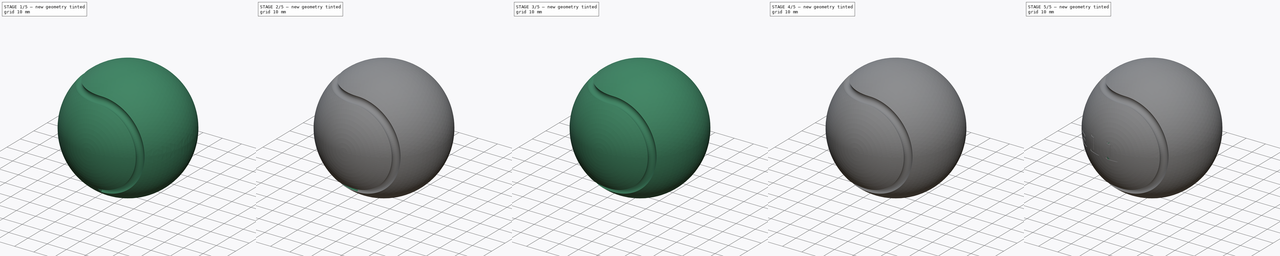
[diagram: build sequence overview — one tinted view per stage of 5, left to right]
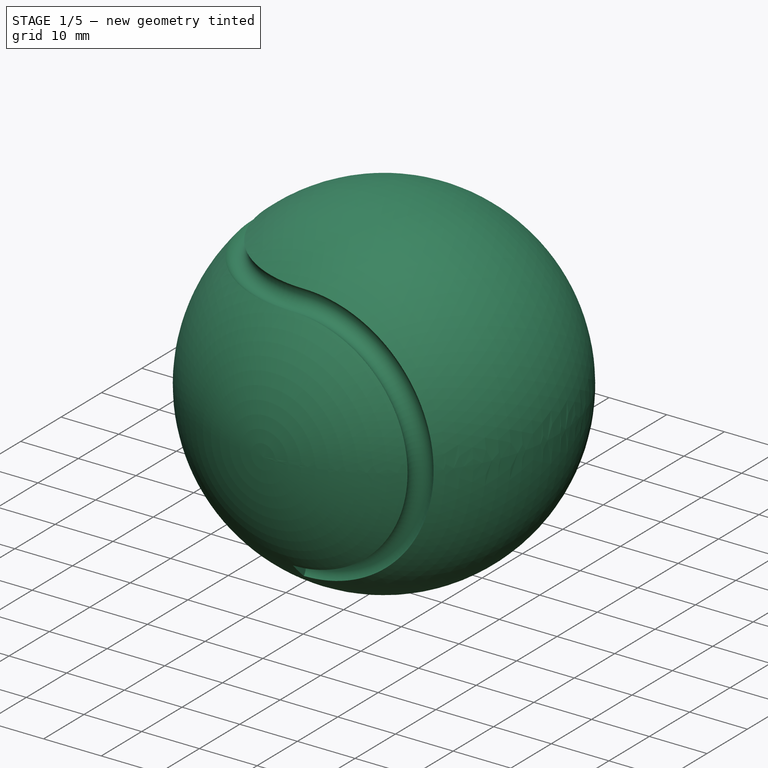
[diagram: stage 1 of 5 — iso view after this stage's code; geometry added in this stage tinted green]
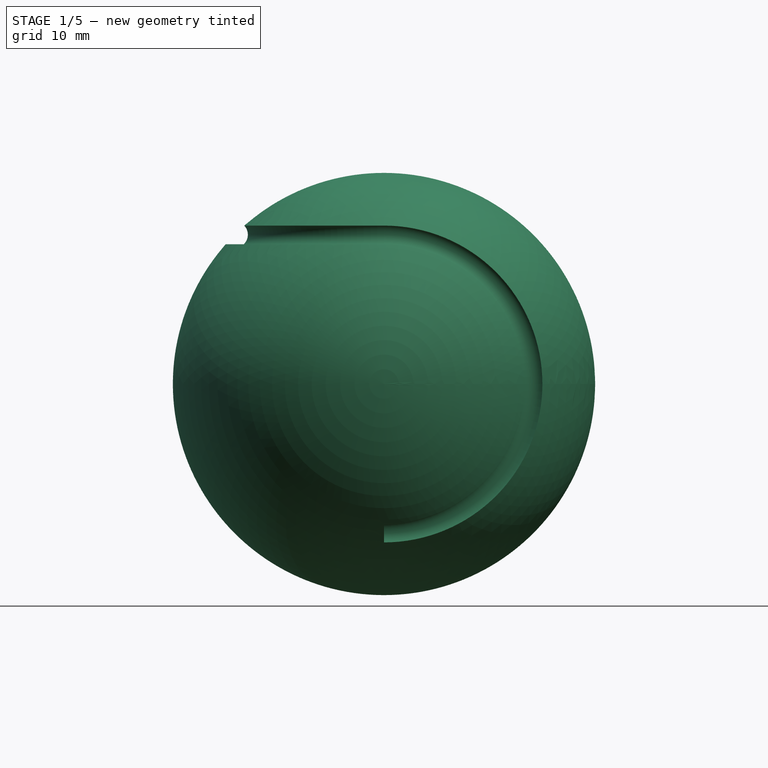
[diagram: stage 1 of 5 — front view after this stage's code; geometry added in this stage tinted green]
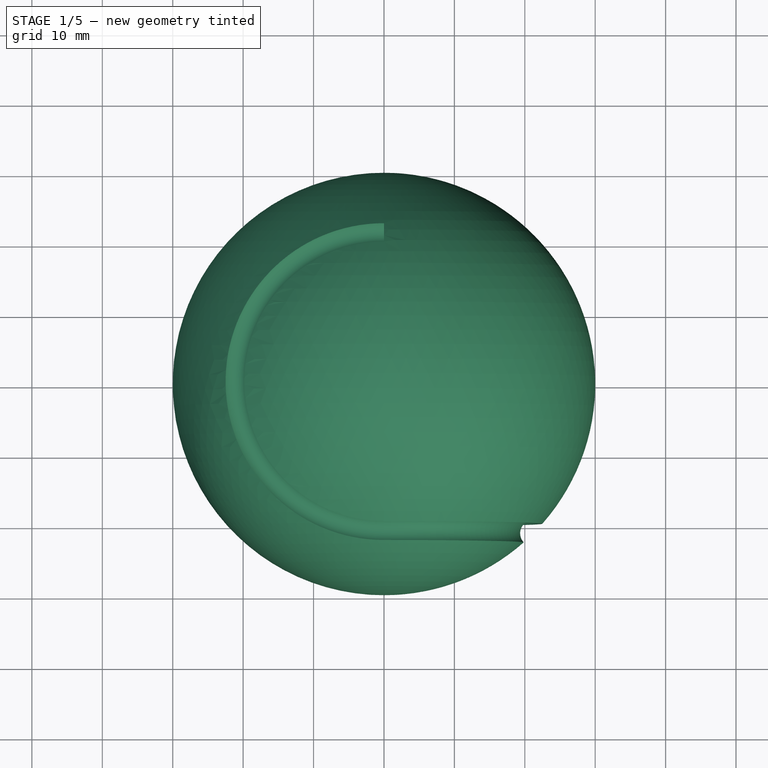
[diagram: stage 1 of 5 — top view after this stage's code; geometry added in this stage tinted green]
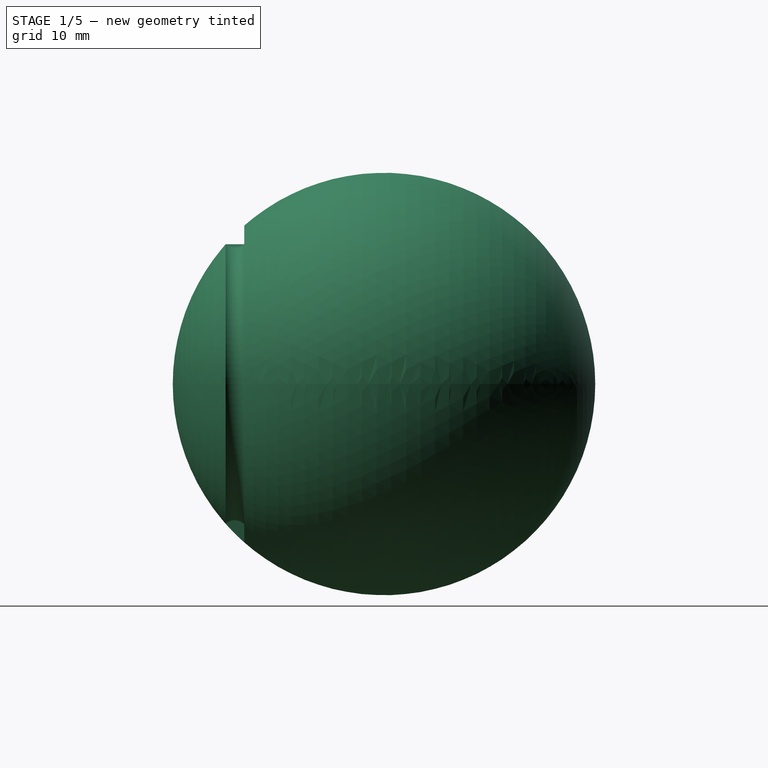
[diagram: stage 1 of 5 — right view after this stage's code; geometry added in this stage tinted green]
FCSTD DOCUMENT  (FreeCAD 1.0R39319 (Git))
Label: tennisball
License: All rights reserved
LicenseURL: https://en.wikipedia.org/wiki/All_rights_reserved
objects: PartDesign::Plane×11, Part::Part2DObjectPython×10, PartDesign::Pocket×10, Sketcher::SketchObject×7, PartDesign::SubtractivePipe×4, PartDesign::Revolution×1, PartDesign::Body×1, Spreadsheet::Sheet×1
note: 81 computed .brp shape members not serialized (recipe doc carries the construction recipe); baked Part::Feature solids carry a one-line shape summary decoded from their .brp

FEATURE [Sketcher::SketchObject] Sketch
  ArcFitTolerance = 1e-06
  AttachmentSupport = -> [XY_Plane]
  FullyConstrained = true
  MakeInternals = false
  MapMode = 5
  sketch-geometry (2):
    g0: ArcOfCircle CenterX=0 CenterY=0 CenterZ=0 NormalX=0 NormalY=0 NormalZ=1 AngleXU=0 Radius=30 StartAngle=4.71239 EndAngle=7.85398
    g1: LineSegment StartX=-5.5e-15 StartY=30 StartZ=0 EndX=-5.5e-15 EndY=-30 EndZ=0
  constraints (6):
    c: Coincident(g0,g-1)
    c: PointOnObject(g0,g-2)
    c: Coincident(g0,g1)
    c: Coincident(g1,g0)
    c: Vertical(g1)
    c: Radius(g0) = 30
FEATURE [Sketcher::SketchObject] Sketch001
  ArcFitTolerance = 1e-06
  AttachmentOffset = pos=(0,0,21.2132) rot=(0,0,1;0rad)
  AttachmentSupport = -> [XZ_Plane]
  FullyConstrained = true
  MakeInternals = false
  MapMode = 5
  Placement = pos=(0,-21.2132,4.7e-15) rot=(1,0,0;1.5708rad)
  expr: .AttachmentOffset.Base.z = 30 / sqrt(2)
  expr: Constraints[3] = 30 / sqrt(2)
  sketch-geometry (1):
    g0: ArcOfCircle CenterX=0 CenterY=0 CenterZ=0 NormalX=0 NormalY=0 NormalZ=1 AngleXU=0 Radius=21.2132 StartAngle=4.71239 EndAngle=7.85398
  constraints (4):
    c: Coincident(g0,g-1)
    c: PointOnObject(g0,g-2)
    c: PointOnObject(g0,g-2)
    c: Radius(g0) = 21.2132
FEATURE [Sketcher::SketchObject] Sketch002
  ArcFitTolerance = 1e-06
  AttachmentOffset = pos=(0,0,21.2132) rot=(0,0,1;0rad)
  AttachmentSupport = -> [XY_Plane]
  FullyConstrained = false
  MakeInternals = false
  MapMode = 5
  Placement = pos=(0,0,21.2132) rot=(0,0,1;0rad)
  expr: .AttachmentOffset.Base.z = 30 / sqrt(2)
  sketch-geometry (1):
    g0: ArcOfCircle CenterX=0 CenterY=0 CenterZ=0 NormalX=0 NormalY=0 NormalZ=1 AngleXU=0 Radius=21.21 StartAngle=1.5708 EndAngle=4.71239
  constraints (3):
    c: Coincident(g0,g-1)
    c: PointOnObject(g0,g-2)
    c: Radius(g0) = 21.21
FEATURE [PartDesign::Revolution] Revolution
  Angle = 360
  Angle2 = 60
  Axis = (0,1,0)
  Base = (0,0,0)
  Profile = -> Sketch
  ReferenceAxis = -> Sketch [V_Axis]
  Refine = true
  Reversed = true
  Suppressed = false
  Type = 0
FEATURE [Sketcher::SketchObject] Sketch003
  ArcFitTolerance = 1e-06
  AttachmentSupport = -> [YZ_Plane]
  FullyConstrained = false
  MakeInternals = false
  MapMode = 5
  Placement = pos=(0,0,0) rot=(0.57735,0.57735,0.57735;2.0944rad)
  sketch-geometry (2):
    g0: Circle CenterX=21.2132 CenterY=21.2132 CenterZ=0 NormalX=0 NormalY=0 NormalZ=1 AngleXU=0 Radius=1.87323
    g1: LineSegment [constr] StartX=21.2132 StartY=21.2132 StartZ=0 EndX=0 EndY=0 EndZ=0
  constraints (4):
    c: Coincident(g1,g0)
    c: Coincident(g1,g-1)
    c: Distance(g1) = 30
    c: Angle(g-1,g1) = 0.785398
FEATURE [Sketcher::SketchObject] Sketch004
  ArcFitTolerance = 1e-06
  AttachmentOffset = pos=(0,0,-21.2132) rot=(0,0,1;0rad)
  AttachmentSupport = -> [XZ_Plane]
  FullyConstrained = true
  MakeInternals = false
  MapMode = 5
  Placement = pos=(0,21.2132,-4.7e-15) rot=(1,0,0;1.5708rad)
  expr: .AttachmentOffset.Base.z = -30 / sqrt(2)
  expr: Constraints[3] = 30 / sqrt(2)
  sketch-geometry (1):
    g0: ArcOfCircle CenterX=0 CenterY=0 CenterZ=0 NormalX=0 NormalY=0 NormalZ=1 AngleXU=0 Radius=21.2132 StartAngle=4.71239 EndAngle=7.85398
  constraints (4):
    c: Coincident(g0,g-1)
    c: PointOnObject(g0,g-2)
    c: PointOnObject(g0,g-2)
    c: Radius(g0) = 21.2132
FEATURE [Sketcher::SketchObject] Sketch005
  ArcFitTolerance = 1e-06
  AttachmentOffset = pos=(0,0,-21.2132) rot=(0,0,1;0rad)
  AttachmentSupport = -> [XY_Plane]
  FullyConstrained = true
  MakeInternals = false
  MapMode = 5
  Placement = pos=(0,0,-21.2132) rot=(0,0,1;0rad)
  expr: .AttachmentOffset.Base.z = -30 / sqrt(2)
  expr: Constraints[3] = 30 / sqrt(2)
  sketch-geometry (1):
    g0: ArcOfCircle CenterX=0 CenterY=0 CenterZ=0 NormalX=0 NormalY=0 NormalZ=1 AngleXU=0 Radius=21.2132 StartAngle=1.5708 EndAngle=4.71239
  constraints (4):
    c: Coincident(g0,g-1)
    c: PointOnObject(g0,g-2)
    c: PointOnObject(g0,g-2)
    c: Radius(g0) = 21.2132
FEATURE [Sketcher::SketchObject] Sketch006
  ArcFitTolerance = 1e-06
  AttachmentSupport = -> [XY_Plane]
  FullyConstrained = false
  MakeInternals = false
  MapMode = 5
  sketch-geometry (20):
    g0: LineSegment StartX=0 StartY=0 StartZ=0 EndX=-0.151781 EndY=30.9996 EndZ=0
    g1: ArcOfCircle [constr] CenterX=0 CenterY=0 CenterZ=0 NormalX=0 NormalY=0 NormalZ=1 AngleXU=0 Radius=31 StartAngle=1.57569 EndAngle=4.70749
    g2: LineSegment StartX=0 StartY=0 StartZ=0 EndX=-0.151781 EndY=-30.9996 EndZ=0
    g3: LineSegment StartX=0 StartY=0 StartZ=0 EndX=-10.7135 EndY=29.0899 EndZ=0
    g4: LineSegment StartX=0 StartY=0 StartZ=0 EndX=-19.9909 EndY=23.6931 EndZ=0
    g5: LineSegment StartX=0 StartY=0 StartZ=0 EndX=-26.872 EndY=15.4562 EndZ=0
    g6: LineSegment StartX=0 StartY=0 StartZ=0 EndX=-30.532 EndY=5.36648 EndZ=0
    g7: LineSegment StartX=0 StartY=0 StartZ=0 EndX=-30.532 EndY=-5.36648 EndZ=0
    g8: LineSegment StartX=0 StartY=0 StartZ=0 EndX=-26.872 EndY=-15.4562 EndZ=0
    g9: LineSegment StartX=0 StartY=0 StartZ=0 EndX=-19.9909 EndY=-23.6931 EndZ=0
    g10: LineSegment StartX=0 StartY=0 StartZ=0 EndX=-10.7135 EndY=-29.0899 EndZ=0
    g11: LineSegment [constr] StartX=-0.151781 StartY=30.9996 StartZ=0 EndX=-10.7135 EndY=29.0899 EndZ=0
    g12: LineSegment [constr] StartX=-10.7135 StartY=29.0899 StartZ=0 EndX=-19.9909 EndY=23.6931 EndZ=0
    g13: LineSegment [constr] StartX=-19.9909 StartY=23.6931 StartZ=0 EndX=-26.872 EndY=15.4562 EndZ=0
    g14: LineSegment [constr] StartX=-26.872 StartY=15.4562 StartZ=0 EndX=-30.532 EndY=5.36648 EndZ=0
    g15: LineSegment [constr] StartX=-30.532 StartY=5.36648 StartZ=0 EndX=-30.532 EndY=-5.36648 EndZ=0
    g16: LineSegment [constr] StartX=-30.532 StartY=-5.36648 StartZ=0 EndX=-26.872 EndY=-15.4562 EndZ=0
    g17: LineSegment [constr] StartX=-26.872 StartY=-15.4562 StartZ=0 EndX=-19.9909 EndY=-23.6931 EndZ=0
    g18: LineSegment [constr] StartX=-19.9909 StartY=-23.6931 StartZ=0 EndX=-10.7135 EndY=-29.0899 EndZ=0
    g19: LineSegment [constr] StartX=-10.7135 StartY=-29.0899 StartZ=0 EndX=-0.151781 EndY=-30.9996 EndZ=0
  constraints (50):
    c: Coincident(g-1,g0)
    c: Coincident(g1,g0)
    c: Coincident(g1,g0)
    c: Coincident(g0,g2)
    c: Coincident(g2,g1)
    c: Coincident(g0,g3)
    c: PointOnObject(g3,g1)
    c: Coincident(g0,g4)
    c: PointOnObject(g4,g1)
    c: Coincident(g0,g5)
    c: PointOnObject(g5,g1)
    c: Coincident(g0,g6)
    c: PointOnObject(g6,g1)
    c: Coincident(g0,g7)
    c: PointOnObject(g7,g1)
    c: Coincident(g0,g8)
    c: PointOnObject(g8,g1)
    c: Coincident(g0,g9)
    c: PointOnObject(g9,g1)
    c: Coincident(g0,g10)
    c: PointOnObject(g10,g1)
    c: Coincident(g0,g11)
    c: Coincident(g11,g3)
    c: Coincident(g11,g12)
    c: Coincident(g12,g4)
    c: Coincident(g12,g13)
    c: Coincident(g13,g5)
    c: Coincident(g13,g14)
    c: Coincident(g14,g6)
    c: Coincident(g14,g15)
    c: Coincident(g15,g7)
    c: Coincident(g15,g16)
    c: Coincident(g16,g8)
    c: Coincident(g16,g17)
    c: Coincident(g17,g9)
    c: Coincident(g17,g18)
    c: Coincident(g18,g10)
    c: Coincident(g18,g19)
    c: Coincident(g19,g1)
    c: Equal(g12,g13)
    c: Equal(g13,g14)
    c: Equal(g14,g15)
    c: Equal(g15,g16)
    c: Equal(g16,g17)
    c: Equal(g17,g18)
    c: Equal(g18,g19)
    c: Distance(g11) = 10.733
    c: Equal(g11,g12)
    c: Vertical(g0,g1)
    c: Distance(g0) = 31
FEATURE [PartDesign::Plane] DatumPlane001
  AttachmentSupport = -> [Sketch006]
  Length = 72.2309
  MapMode = 7
  Placement = pos=(-0.151781,30.9996,0) rot=(0.999994,0.002448,0.002448;1.5708rad)
  ResizeMode = 0
  Width = 72.0209
FEATURE [Part::Part2DObjectPython] ShapeString001  # Draft 2D object (typed FeaturePython)
  AttachmentSupport = -> [DatumPlane001]
  FontFile = <path>
  Fuse = false
  Justification = 4
  JustificationReference = 0
  KeepLeftMargin = false
  MakeFace = true
  MapMode = 5
  ObliqueAngle = 0
  Placement = pos=(-0.151781,30.9996,0) rot=(-0.001731,0.707106,0.707106;3.14506rad)
  ScaleToSize = true
  Size = 8
  String = t
  Tracking = 0
  expr: Size = <<Spreadsheet>>.H_text
FEATURE [PartDesign::Plane] DatumPlane002
  AttachmentSupport = -> [Sketch006]
  Length = 90.5497
  MapMode = 7
  Placement = pos=(-10.7135,29.0899,0) rot=(0.969652,0.17288,0.17288;1.60161rad)
  ResizeMode = 0
  Width = 73.5904
FEATURE [Part::Part2DObjectPython] ShapeString002  # Draft 2D object (typed FeaturePython)
  AttachmentSupport = -> [DatumPlane002]
  FontFile = <path>
  Fuse = false
  Justification = 4
  JustificationReference = 0
  KeepLeftMargin = false
  MakeFace = true
  MapMode = 5
  ObliqueAngle = 0
  Placement = pos=(-10.7135,29.0899,0) rot=(-0.125081,0.701554,0.701554;3.39046rad)
  ScaleToSize = true
  Size = 8
  String = e
  Tracking = 0
  expr: Size = <<Spreadsheet>>.H_text
FEATURE [PartDesign::Plane] DatumPlane003
  AttachmentSupport = -> [Sketch006]
  Length = 98.7225
  MapMode = 7
  Placement = pos=(-19.9909,23.6931,0) rot=(0.888337,0.324697,0.324697;1.68892rad)
  ResizeMode = 0
  Width = 74.2393
FEATURE [Part::Part2DObjectPython] ShapeString003  # Draft 2D object (typed FeaturePython)
  AttachmentSupport = -> [DatumPlane003]
  FontFile = <path>
  Fuse = false
  Justification = 4
  JustificationReference = 0
  KeepLeftMargin = false
  MakeFace = true
  MapMode = 5
  ObliqueAngle = 0
  Placement = pos=(-19.9909,23.6931,0) rot=(-0.250233,0.684611,0.684611;3.63199rad)
  ScaleToSize = true
  Size = 8
  String = n
  Tracking = 0
  expr: Size = <<Spreadsheet>>.H_text
FEATURE [PartDesign::Plane] DatumPlane004
  AttachmentSupport = -> [Sketch006]
  Length = 95.8982
  MapMode = 7
  Placement = pos=(-26.872,15.4562,0) rot=(0.774013,0.447719,0.447719;1.82421rad)
  ResizeMode = 0
  Width = 74.0182
FEATURE [Part::Part2DObjectPython] ShapeString004  # Draft 2D object (typed FeaturePython)
  AttachmentSupport = -> [DatumPlane004]
  FontFile = <path>
  Fuse = false
  Justification = 4
  JustificationReference = 0
  KeepLeftMargin = false
  MakeFace = true
  MapMode = 5
  ObliqueAngle = 0
  Placement = pos=(-26.872,15.4562,0) rot=(-0.378575,0.654477,0.654477;3.86539rad)
  ScaleToSize = true
  Size = 8
  String = n
  Tracking = 0
  expr: Size = <<Spreadsheet>>.H_text
FEATURE [PartDesign::Plane] DatumPlane005
  AttachmentSupport = -> [Sketch006]
  Length = 82.3733
  MapMode = 7
  Placement = pos=(-30.532,5.36648,0) rot=(0.644192,0.54084,0.54084;1.99703rad)
  ResizeMode = 0
  Width = 72.9115
FEATURE [Part::Part2DObjectPython] ShapeString005  # Draft 2D object (typed FeaturePython)
  AttachmentSupport = -> [DatumPlane005]
  FontFile = <path>
  Fuse = false
  Justification = 4
  JustificationReference = 0
  KeepLeftMargin = false
  MakeFace = true
  MapMode = 5
  ObliqueAngle = 0
  Placement = pos=(-30.532,5.36648,0) rot=(-0.510482,0.608033,0.608033;4.08559rad)
  ScaleToSize = true
  Size = 8
  String = i
  Tracking = 0
  expr: Size = <<Spreadsheet>>.H_text
FEATURE [PartDesign::Plane] DatumPlane006
  AttachmentSupport = -> [Sketch006]
  Length = 82.3733
  MapMode = 7
  Placement = pos=(-30.532,-5.36648,0) rot=(0.510482,0.608033,0.608033;2.1976rad)
  ResizeMode = 0
  Width = 72.9115
FEATURE [Part::Part2DObjectPython] ShapeString006  # Draft 2D object (typed FeaturePython)
  AttachmentSupport = -> [DatumPlane006]
  FontFile = <path>
  Fuse = false
  Justification = 4
  JustificationReference = 0
  KeepLeftMargin = false
  MakeFace = true
  MapMode = 5
  ObliqueAngle = 0
  Placement = pos=(-30.532,-5.36648,0) rot=(0.644192,-0.54084,-0.54084;1.99703rad)
  ScaleToSize = true
  Size = 8
  String = s
  Tracking = 0
  expr: Size = <<Spreadsheet>>.H_text
FEATURE [PartDesign::Plane] DatumPlane007
  AttachmentSupport = -> [Sketch006]
  Length = 95.8982
  MapMode = 7
  Placement = pos=(-26.872,-15.4562,0) rot=(0.378575,0.654477,0.654477;2.41779rad)
  ResizeMode = 0
  Width = 74.0182
FEATURE [Part::Part2DObjectPython] ShapeString007  # Draft 2D object (typed FeaturePython)
  AttachmentSupport = -> [DatumPlane007]
  FontFile = <path>
  Fuse = false
  Justification = 4
  JustificationReference = 0
  KeepLeftMargin = false
  MakeFace = true
  MapMode = 5
  ObliqueAngle = 0
  Placement = pos=(-26.872,-15.4562,0) rot=(0.774013,-0.447719,-0.447719;1.82421rad)
  ScaleToSize = true
  Size = 8
  String = b
  Tracking = 0
  expr: Size = <<Spreadsheet>>.H_text
FEATURE [PartDesign::Plane] DatumPlane008
  AttachmentSupport = -> [Sketch006]
  Length = 98.7225
  MapMode = 7
  Placement = pos=(-19.9909,-23.6931,0) rot=(0.250233,0.684611,0.684611;2.6512rad)
  ResizeMode = 0
  Width = 74.2393
FEATURE [Part::Part2DObjectPython] ShapeString008  # Draft 2D object (typed FeaturePython)
  AttachmentSupport = -> [DatumPlane008]
  FontFile = <path>
  Fuse = false
  Justification = 4
  JustificationReference = 0
  KeepLeftMargin = false
  MakeFace = true
  MapMode = 5
  ObliqueAngle = 0
  Placement = pos=(-19.9909,-23.6931,0) rot=(0.888337,-0.324697,-0.324697;1.68892rad)
  ScaleToSize = true
  Size = 8
  String = a
  Tracking = 0
  expr: Size = <<Spreadsheet>>.H_text
FEATURE [PartDesign::Plane] DatumPlane009
  AttachmentSupport = -> [Sketch006]
  Length = 90.5497
  MapMode = 7
  Placement = pos=(-10.7135,-29.0899,0) rot=(0.125081,0.701554,0.701554;2.89272rad)
  ResizeMode = 0
  Width = 73.5904
FEATURE [Part::Part2DObjectPython] ShapeString009  # Draft 2D object (typed FeaturePython)
  AttachmentSupport = -> [DatumPlane009]
  FontFile = <path>
  Fuse = false
  Justification = 4
  JustificationReference = 0
  KeepLeftMargin = false
  MakeFace = true
  MapMode = 5
  ObliqueAngle = 0
  Placement = pos=(-10.7135,-29.0899,0) rot=(0.969652,-0.17288,-0.17288;1.60161rad)
  ScaleToSize = true
  Size = 8
  String = l
  Tracking = 0
  expr: Size = <<Spreadsheet>>.H_text
FEATURE [PartDesign::SubtractivePipe] SubtractivePipe
  AuxilleryCurvelinear = true
  AuxillerySpineTangent = false
  BaseFeature = -> Revolution
  Binormal = (0,0,0)
  Mode = 0
  Profile = -> Sketch003 [Edge1]
  Refine = true
  Spine = -> Sketch002
  SpineTangent = false
  Suppressed = false
  Transformation = 0
  Transition = 0
FEATURE [PartDesign::SubtractivePipe] SubtractivePipe001
  AuxilleryCurvelinear = true
  AuxillerySpineTangent = false
  BaseFeature = -> SubtractivePipe
  Binormal = (0,0,0)
  Mode = 0
  Profile = -> SubtractivePipe [Face4]
  Refine = true
  Spine = -> Sketch001 [Edge1]
  SpineTangent = false
  Suppressed = false
  Transformation = 0
  Transition = 0
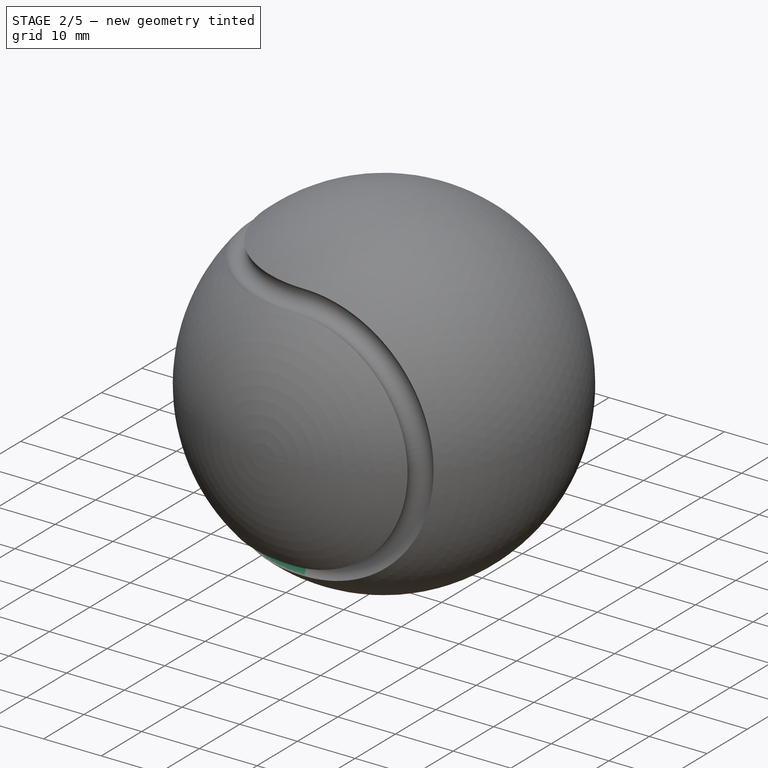
[diagram: stage 2 of 5 — iso view after this stage's code; geometry added in this stage tinted green]
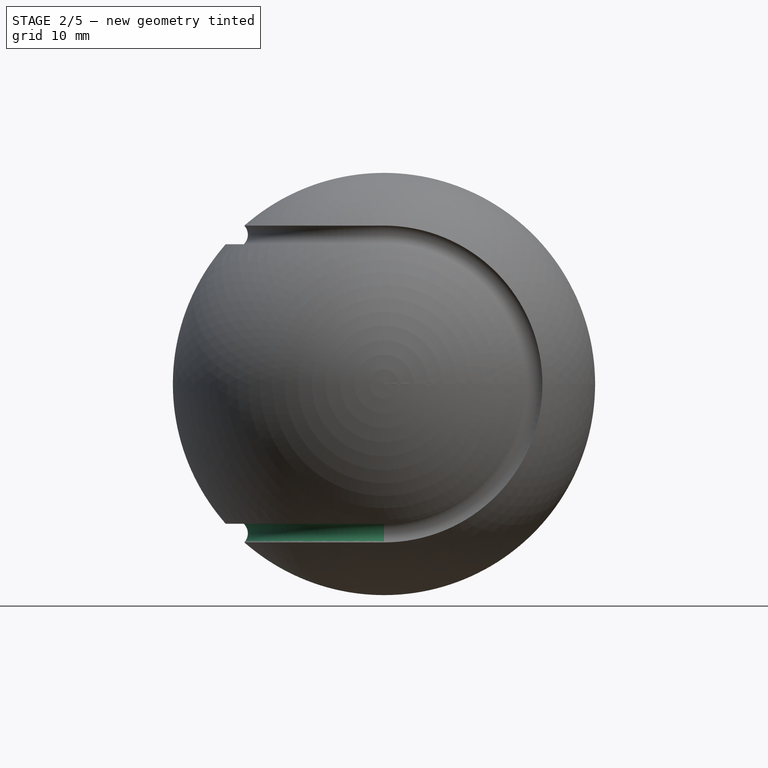
[diagram: stage 2 of 5 — front view after this stage's code; geometry added in this stage tinted green]
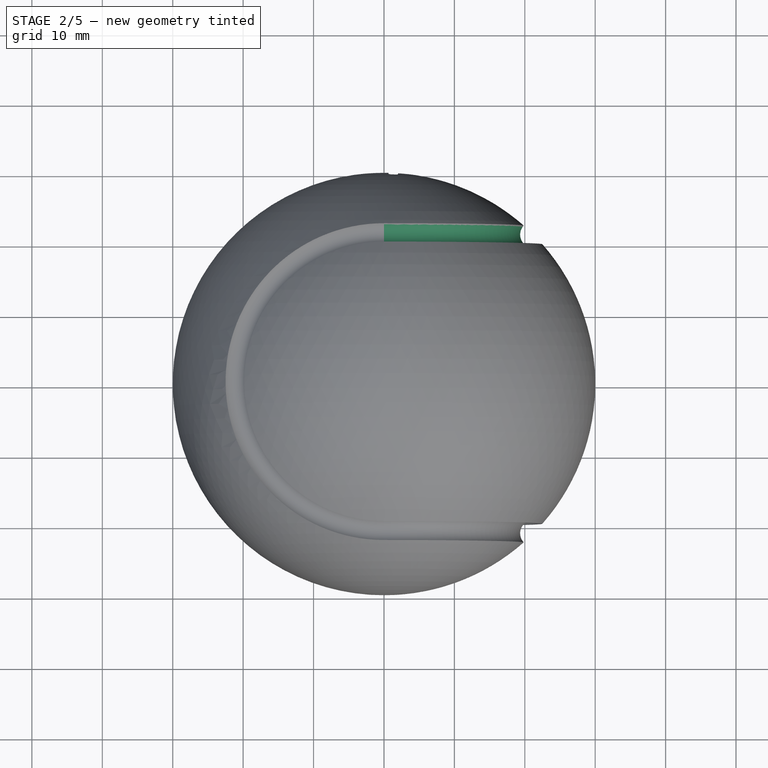
[diagram: stage 2 of 5 — top view after this stage's code; geometry added in this stage tinted green]
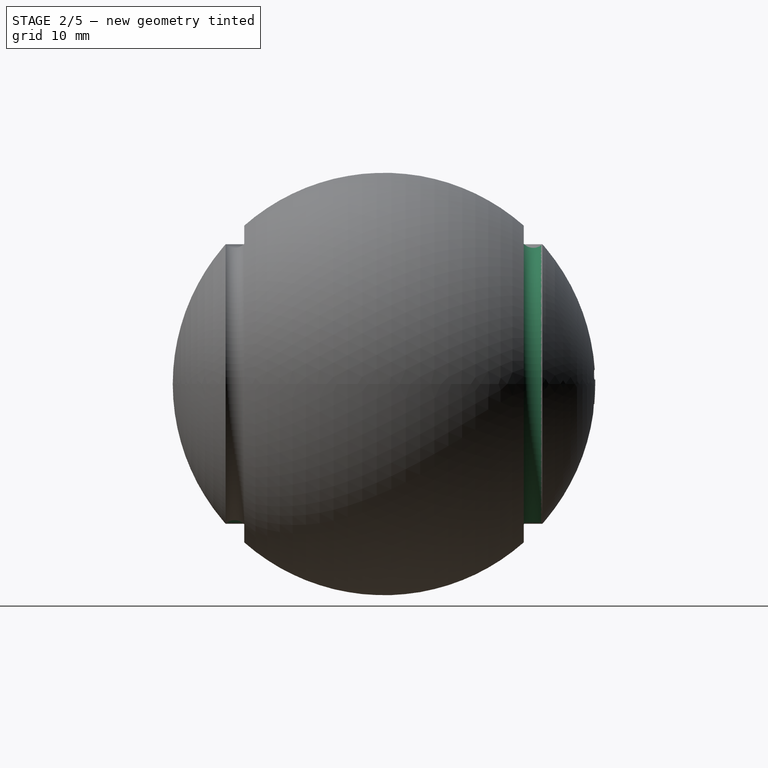
[diagram: stage 2 of 5 — right view after this stage's code; geometry added in this stage tinted green]
FEATURE [PartDesign::SubtractivePipe] SubtractivePipe002
  AuxilleryCurvelinear = true
  AuxillerySpineTangent = false
  BaseFeature = -> SubtractivePipe001
  Binormal = (0,0,0)
  Mode = 0
  Profile = -> SubtractivePipe001 [Face4]
  Refine = true
  Spine = -> Sketch004 [Edge1]
  SpineTangent = false
  Suppressed = false
  Transformation = 0
  Transition = 0
FEATURE [PartDesign::SubtractivePipe] SubtractivePipe003
  AuxilleryCurvelinear = true
  AuxillerySpineTangent = false
  BaseFeature = -> SubtractivePipe002
  Binormal = (0,0,0)
  Mode = 0
  Profile = -> SubtractivePipe002 [Face5]
  Refine = true
  Spine = -> Sketch005 [Edge1]
  SpineTangent = false
  Suppressed = false
  Transformation = 0
  Transition = 0
FEATURE [PartDesign::Pocket] Pocket
  BaseFeature = -> SubtractivePipe003
  Direction = (0.00489617,-0.999988,0)
  Length = 5
  Length2 = 5
  Offset = 0.2
  Profile = -> ShapeString001
  ReferenceAxis = -> ShapeString001 [N_Axis]
  Refine = true
  Suppressed = false
  Type = 2
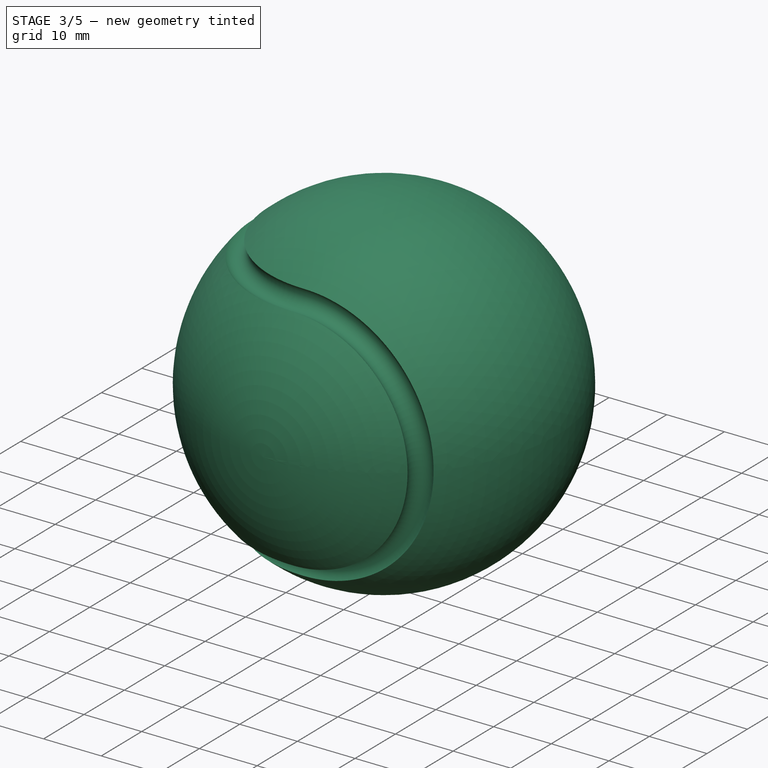
[diagram: stage 3 of 5 — iso view after this stage's code; geometry added in this stage tinted green]
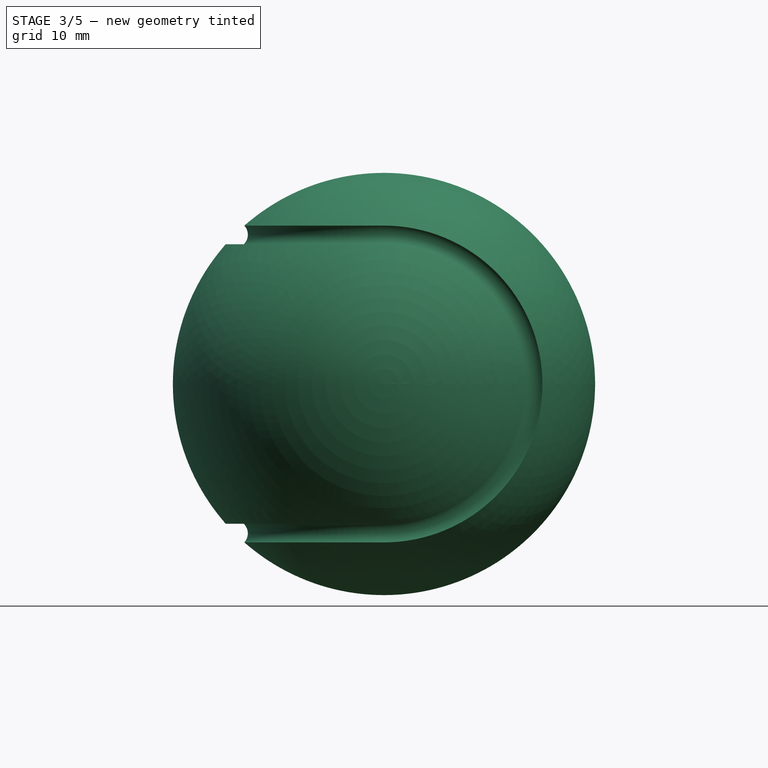
[diagram: stage 3 of 5 — front view after this stage's code; geometry added in this stage tinted green]
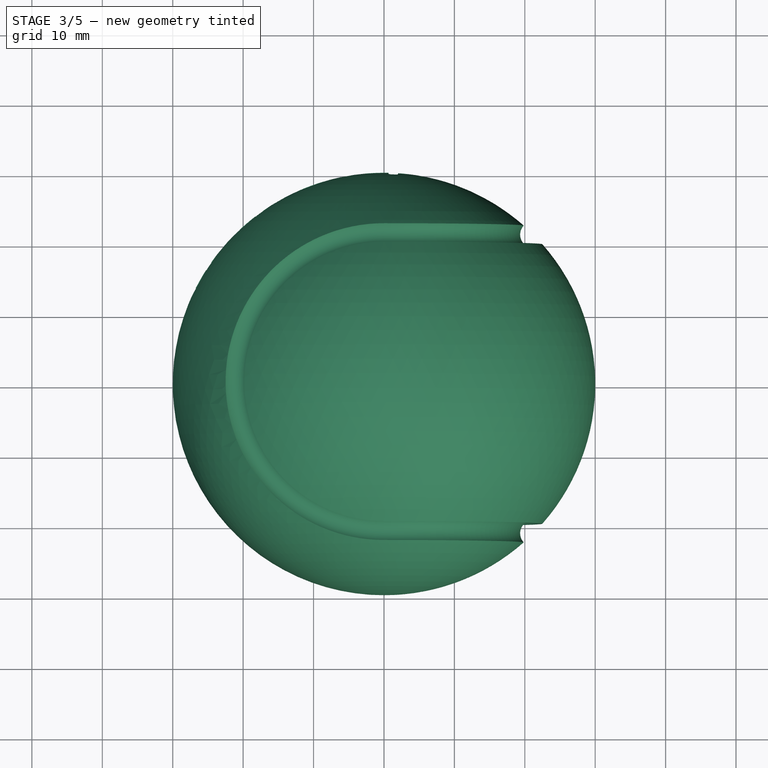
[diagram: stage 3 of 5 — top view after this stage's code; geometry added in this stage tinted green]
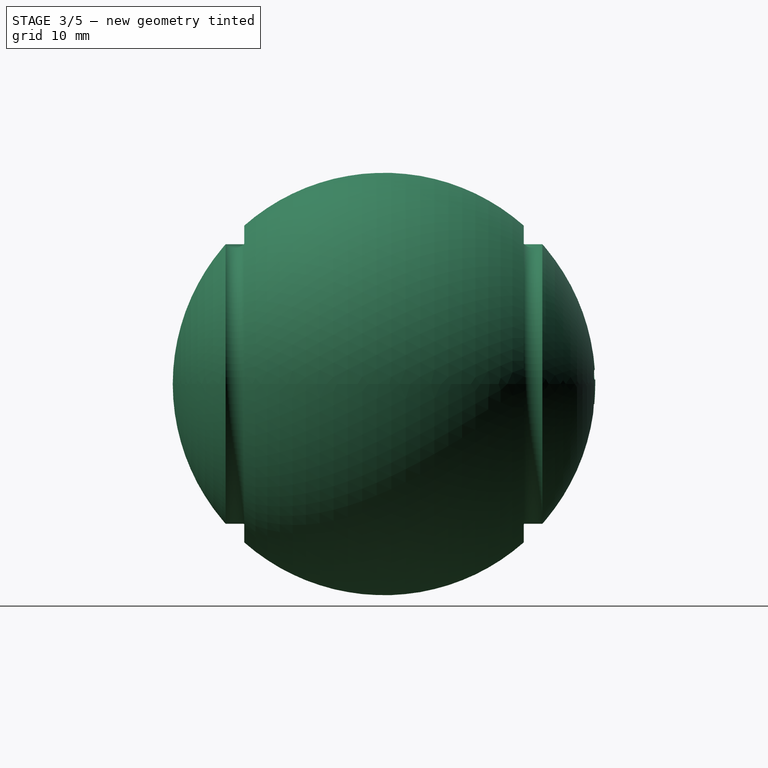
[diagram: stage 3 of 5 — right view after this stage's code; geometry added in this stage tinted green]
FEATURE [PartDesign::Pocket] Pocket001
  BaseFeature = -> Pocket
  Direction = (0.345596,-0.938383,-2e-16)
  Length = 5
  Length2 = 5
  Offset = 0.2
  Profile = -> ShapeString002
  ReferenceAxis = -> ShapeString002 [N_Axis]
  Refine = true
  Suppressed = false
  Type = 2
FEATURE [PartDesign::Pocket] Pocket002
  BaseFeature = -> Pocket001
  Direction = (0.644869,-0.764293,0)
  Length = 5
  Length2 = 5
  Offset = 0.2
  Profile = -> ShapeString003
  ReferenceAxis = -> ShapeString003 [N_Axis]
  Refine = true
  Suppressed = false
  Type = 2
FEATURE [PartDesign::Pocket] Pocket003
  BaseFeature = -> Pocket002
  Direction = (0.86684,-0.498586,1e-16)
  Length = 5
  Length2 = 5
  Offset = 0.2
  Profile = -> ShapeString004
  ReferenceAxis = -> ShapeString004 [N_Axis]
  Refine = true
  Suppressed = false
  Type = 2
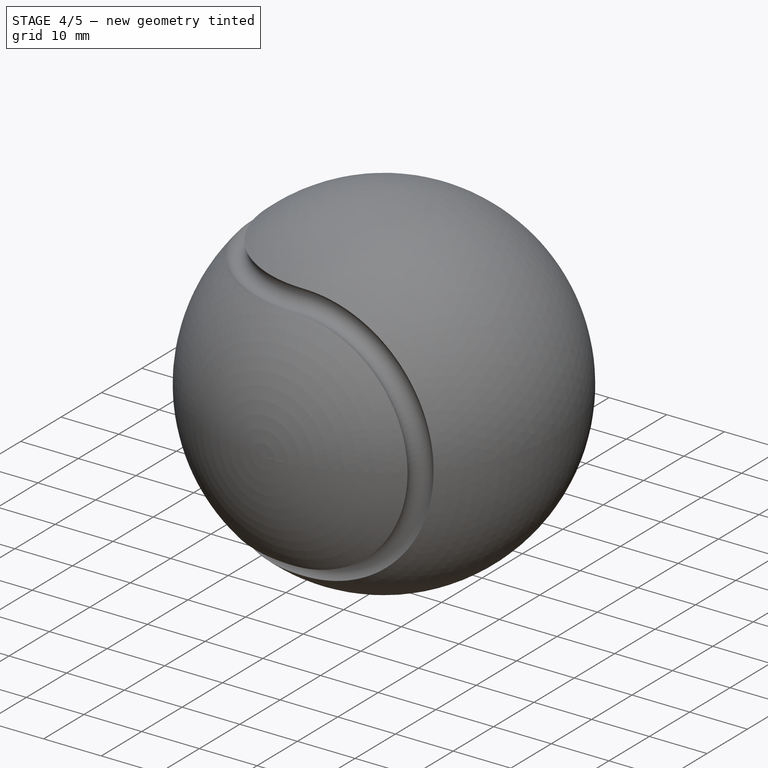
[diagram: stage 4 of 5 — iso view after this stage's code; geometry added in this stage tinted green]
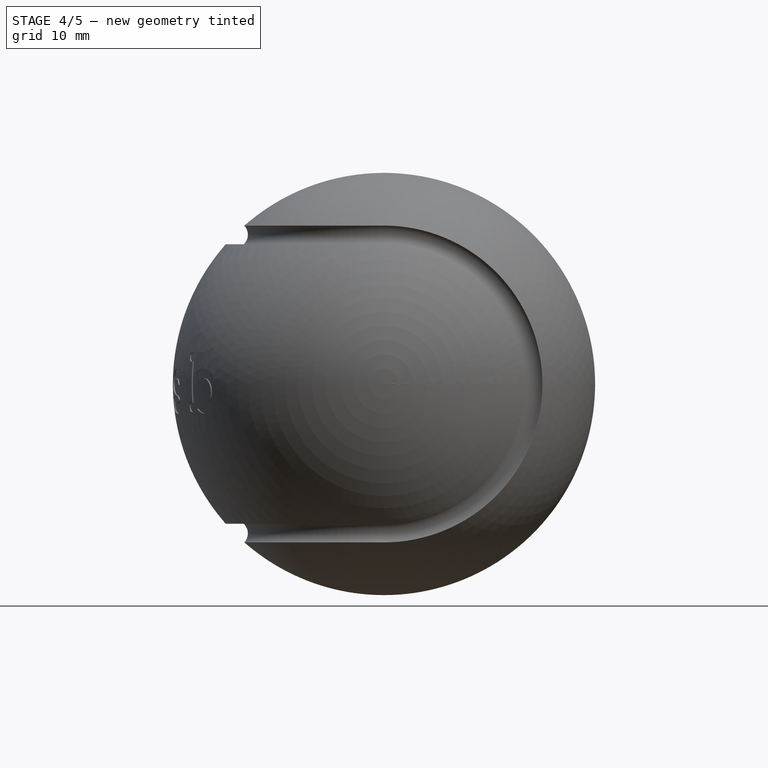
[diagram: stage 4 of 5 — front view after this stage's code; geometry added in this stage tinted green]
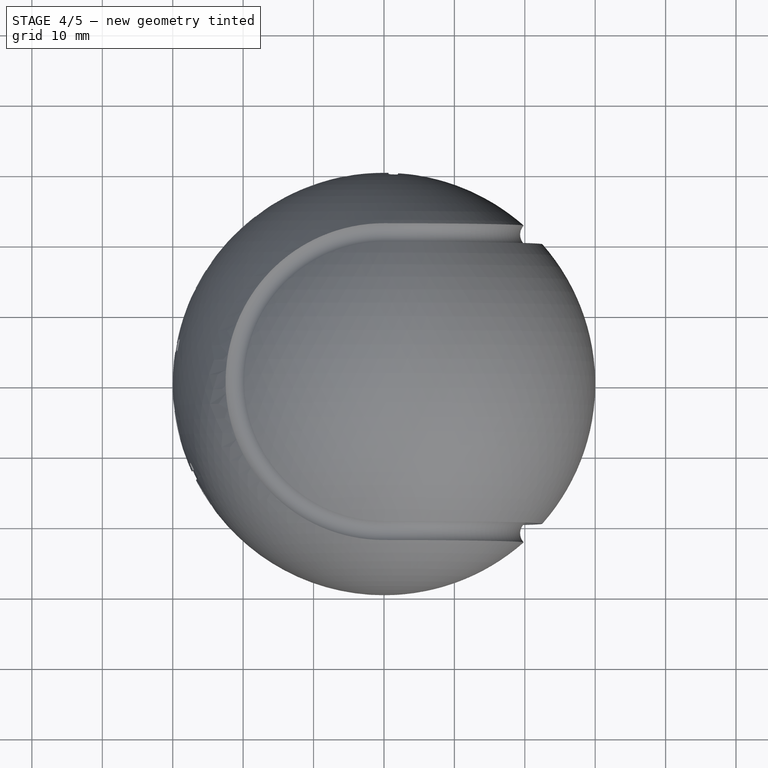
[diagram: stage 4 of 5 — top view after this stage's code; geometry added in this stage tinted green]
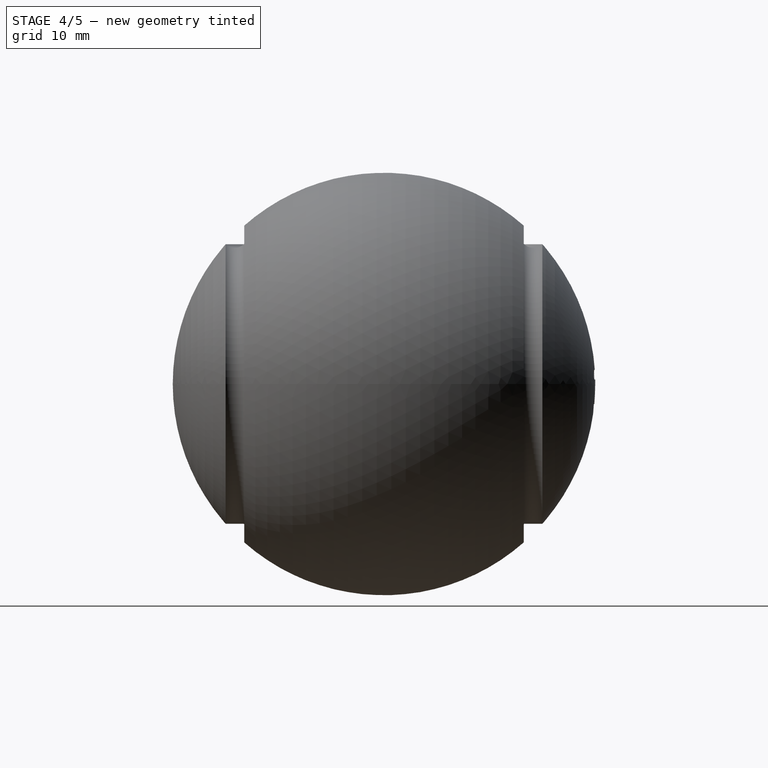
[diagram: stage 4 of 5 — right view after this stage's code; geometry added in this stage tinted green]
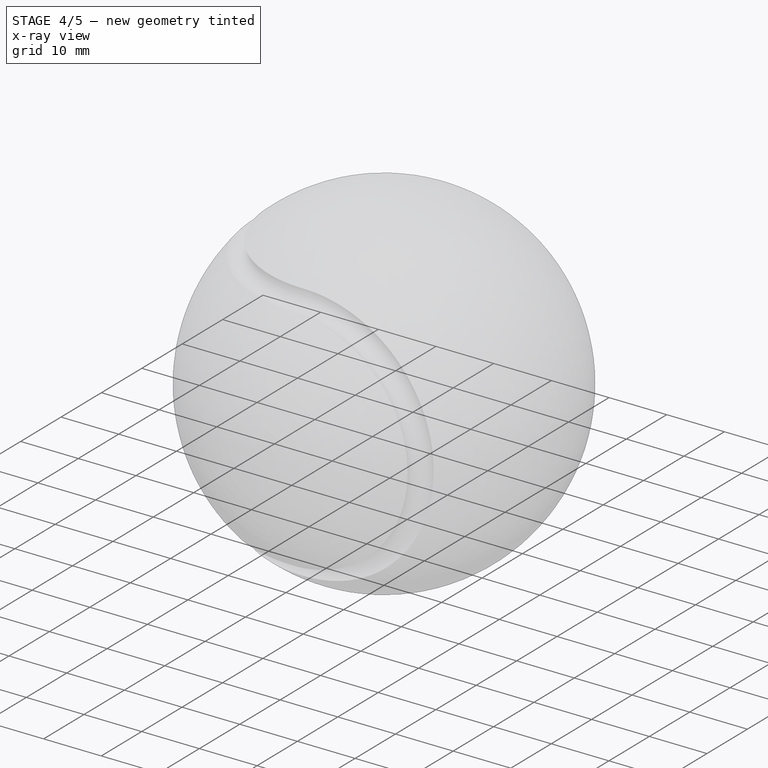
[diagram: stage 4 of 5 — x-ray composite at the iso view; earlier geometry ghosted, this stage's added geometry solid]
FEATURE [PartDesign::Pocket] Pocket004
  BaseFeature = -> Pocket003
  Direction = (0.984902,-0.173112,-1e-16)
  Length = 5
  Length2 = 5
  Offset = 0.2
  Profile = -> ShapeString005
  ReferenceAxis = -> ShapeString005 [N_Axis]
  Refine = true
  Suppressed = false
  Type = 2
FEATURE [PartDesign::Pocket] Pocket005
  BaseFeature = -> Pocket004
  Direction = (0.984902,0.173112,0)
  Length = 5
  Length2 = 5
  Offset = 0.2
  Profile = -> ShapeString006
  ReferenceAxis = -> ShapeString006 [N_Axis]
  Refine = true
  Suppressed = false
  Type = 2
FEATURE [PartDesign::Pocket] Pocket006
  BaseFeature = -> Pocket005
  Direction = (0.86684,0.498586,1e-16)
  Length = 5
  Length2 = 5
  Offset = 0.2
  Profile = -> ShapeString007
  ReferenceAxis = -> ShapeString007 [N_Axis]
  Refine = true
  Suppressed = false
  Type = 2
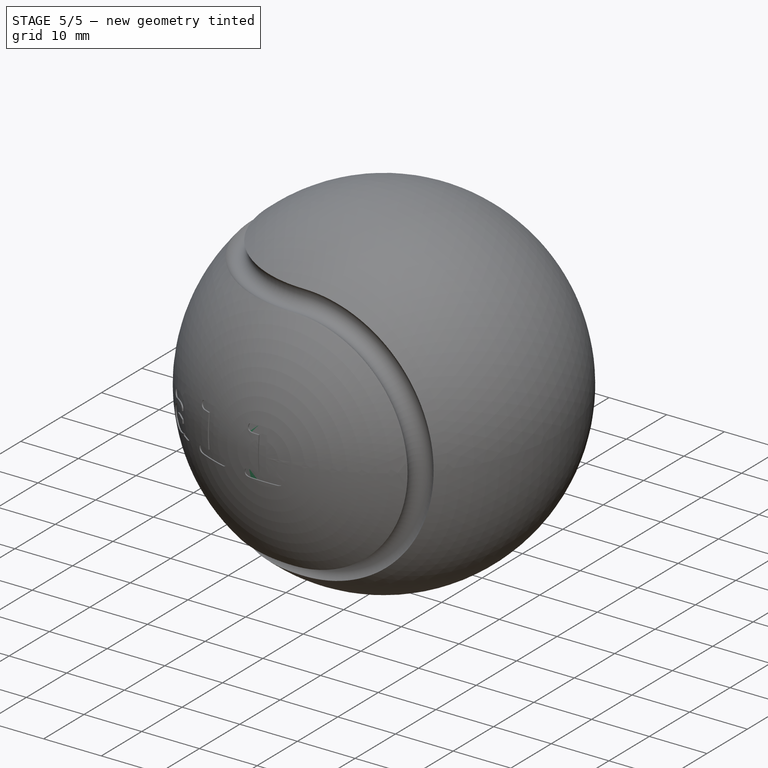
[diagram: stage 5 of 5 — iso view after this stage's code; geometry added in this stage tinted green]
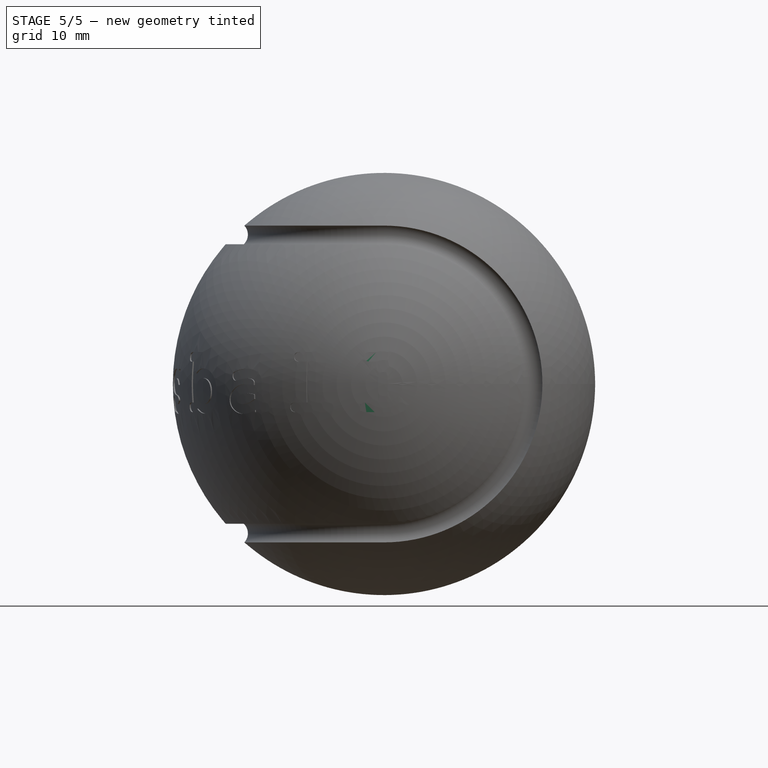
[diagram: stage 5 of 5 — front view after this stage's code; geometry added in this stage tinted green]
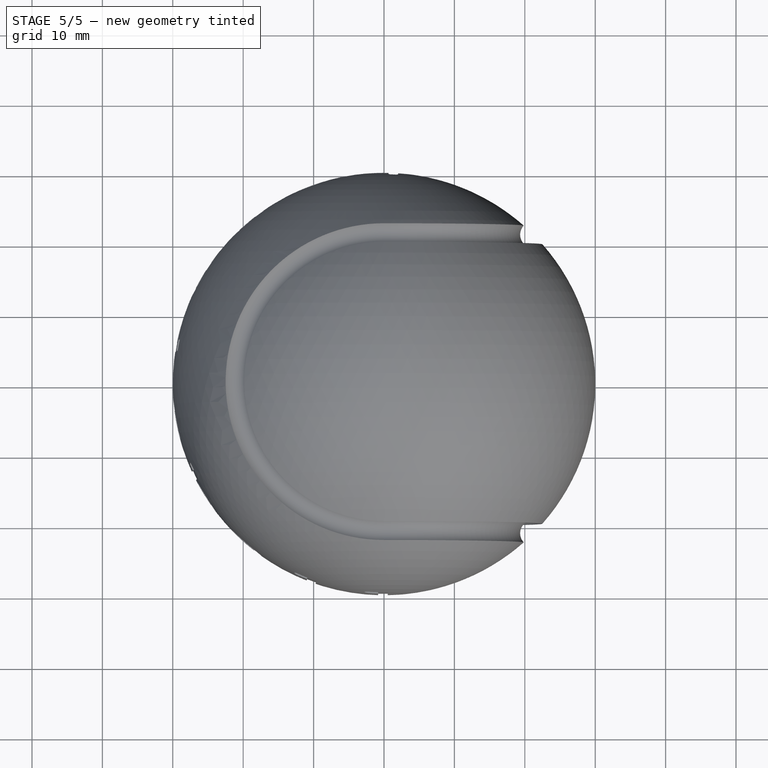
[diagram: stage 5 of 5 — top view after this stage's code; geometry added in this stage tinted green]
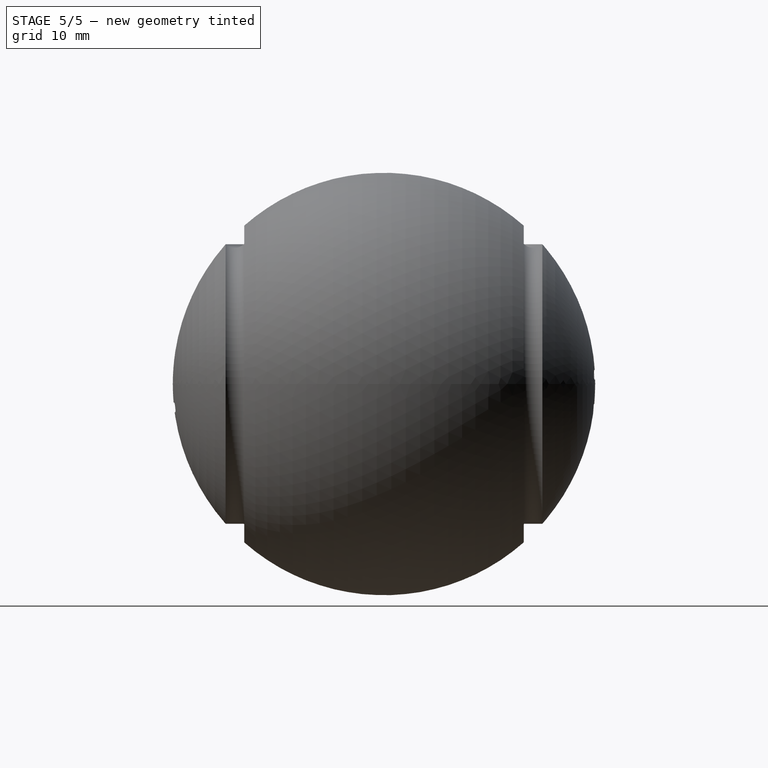
[diagram: stage 5 of 5 — right view after this stage's code; geometry added in this stage tinted green]
FEATURE [PartDesign::Pocket] Pocket007
  BaseFeature = -> Pocket006
  Direction = (0.644869,0.764293,-2e-16)
  Length = 5
  Length2 = 5
  Offset = 0.2
  Profile = -> ShapeString008
  ReferenceAxis = -> ShapeString008 [N_Axis]
  Refine = true
  Suppressed = false
  Type = 2
FEATURE [PartDesign::Pocket] Pocket008
  BaseFeature = -> Pocket007
  Direction = (0.345596,0.938383,0)
  Length = 5
  Length2 = 5
  Offset = 0.2
  Profile = -> ShapeString009
  ReferenceAxis = -> ShapeString009 [N_Axis]
  Refine = true
  Suppressed = false
  Type = 2
FEATURE [PartDesign::Plane] DatumPlane  label="DatumPlane010"
  AttachmentSupport = -> [Sketch006]
  Length = 72.2309
  MapMode = 7
  Placement = pos=(-0.151781,-30.9996,0) rot=(0.001731,0.707106,0.707106;3.13813rad)
  ResizeMode = 0
  Width = 72.0209
FEATURE [PartDesign::Plane] DatumPlane010  label="DatumPlane011"
  AttachmentSupport = -> [Sketch006]
  Length = 72.2309
  MapMode = 7
  Placement = pos=(-0.151781,-30.9996,0) rot=(0.001731,0.707106,0.707106;3.13813rad)
  ResizeMode = 0
  Width = 72.0209
FEATURE [Part::Part2DObjectPython] ShapeString  # Draft 2D object (typed FeaturePython)
  AttachmentSupport = -> [DatumPlane]
  FontFile = <path>
  Fuse = false
  Justification = 4
  JustificationReference = 0
  KeepLeftMargin = false
  MakeFace = true
  MapMode = 5
  ObliqueAngle = 0
  Placement = pos=(-0.151781,-30.9996,0) rot=(0.999994,-0.002448,-0.002448;1.5708rad)
  ScaleToSize = true
  Size = 8
  String = l
  Tracking = 0
  expr: Size = <<Spreadsheet>>.H_text
FEATURE [PartDesign::Pocket] Pocket009
  BaseFeature = -> Pocket008
  Direction = (0.00489617,0.999988,0)
  Length = 1
  Length2 = 5
  Offset = 0.2
  Profile = -> ShapeString
  ReferenceAxis = -> ShapeString [N_Axis]
  Refine = true
  Suppressed = false
  Type = 2
FEATURE [PartDesign::Body] Body
  AllowCompound = false
  Group = -> [Sketch003,Sketch001,Sketch002,Sketch004,Sketch005,Revolution,Sketch,Sketch006,DatumPlane001,ShapeString001,DatumPlane002,ShapeString002,DatumPlane003,ShapeString003,DatumPlane004,ShapeString004,DatumPlane005,ShapeString005,DatumPlane006,ShapeString006,DatumPlane007,ShapeString007,DatumPlane008,ShapeString008,DatumPlane009,ShapeString009,DatumPlane,DatumPlane010,SubtractivePipe,SubtractivePipe001,+13 more]
  Origin = -> Origin
  Tip = -> Pocket009
FEATURE [Spreadsheet::Sheet] Spreadsheet
  cells = A1='H_text; B1(H_text)=8
note: 10 file-system paths scrubbed to <path> (originals preserved in the JSON sidecar)
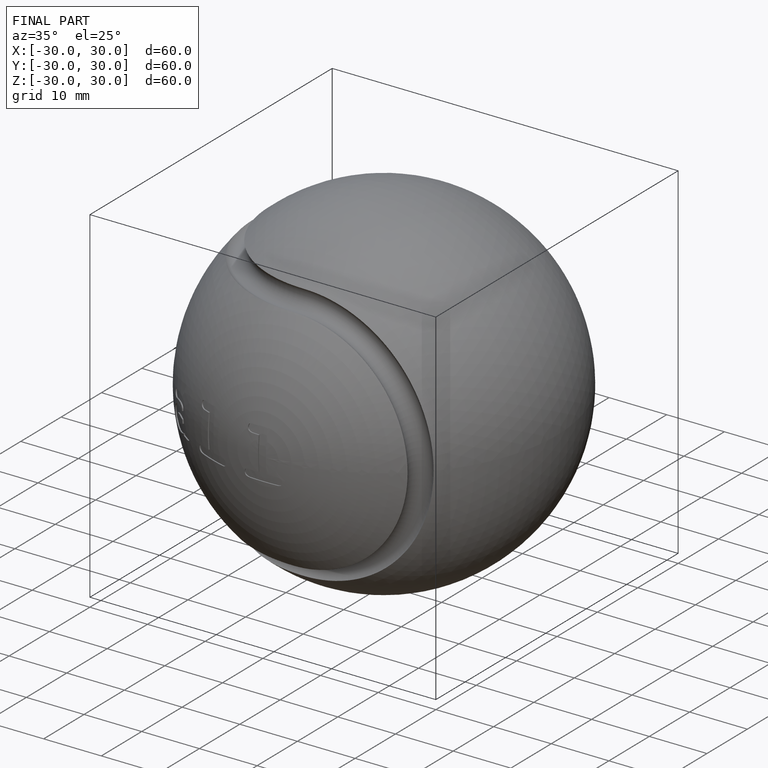
[diagram: finished part — iso view with bounding-box wireframe]
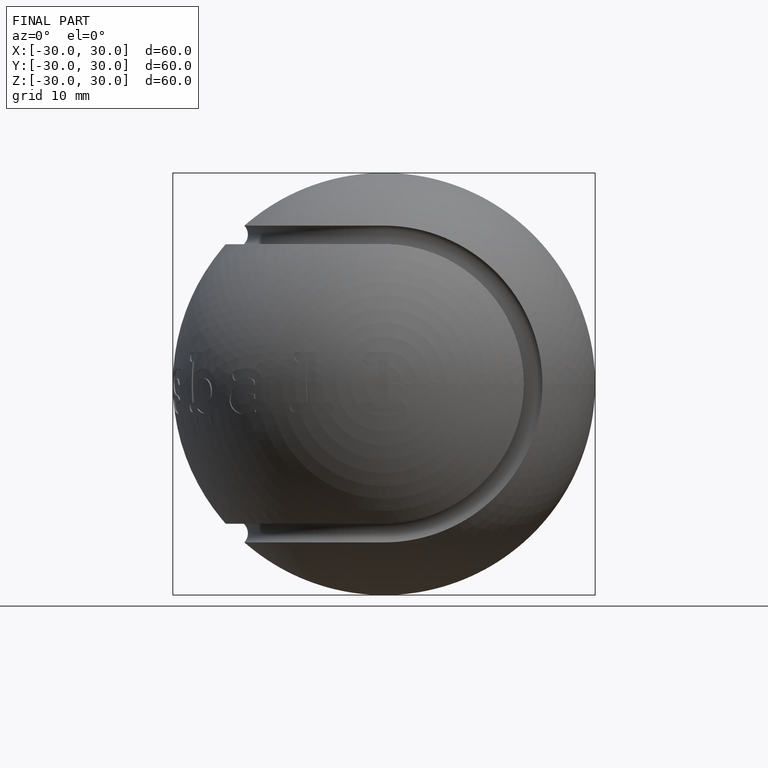
[diagram: finished part — front view with bounding-box wireframe]
